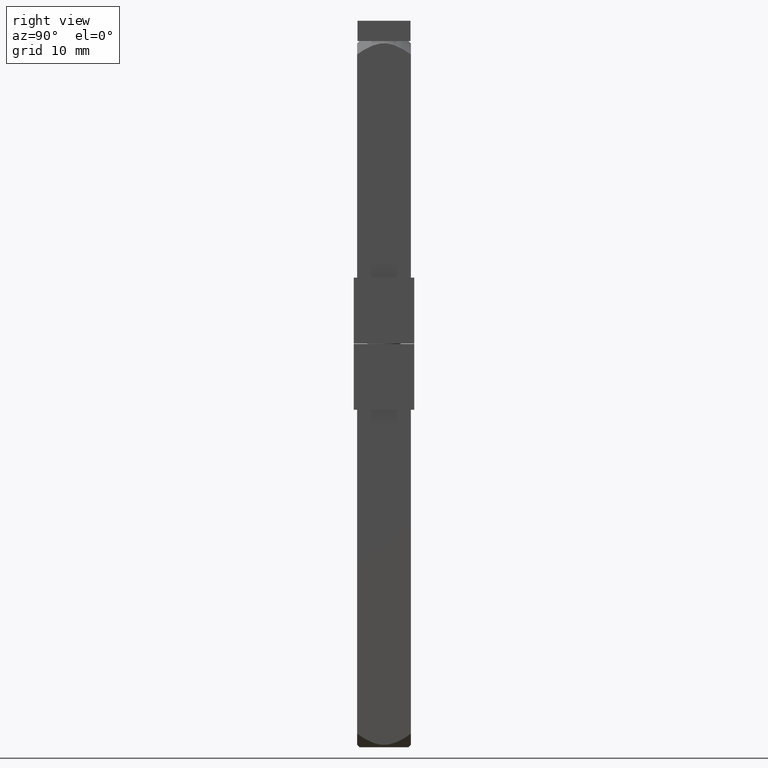
[diagram: clean part render]
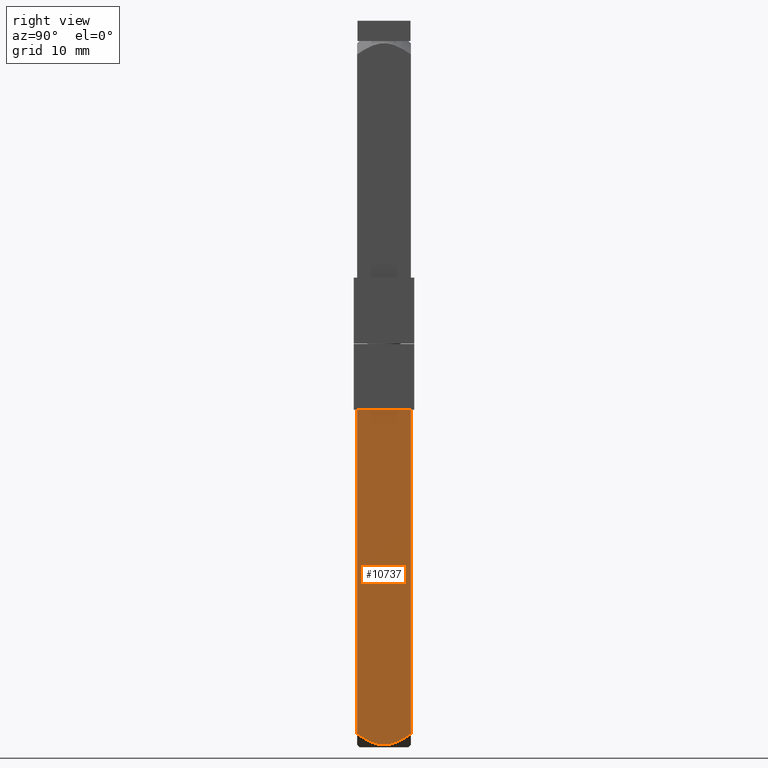
[diagram: same view with one face highlighted and labeled with its STEP entity id]
A machine part, right view. The second image highlights one B-rep face of the part: STEP entity #10737.
In plain terms, the highlighted planar face has unit normal (1, 0, 0).
Its self-contained STEP definition (entity closure, byte-faithful):
#529 = CARTESIAN_POINT ( 'NONE',  ( 4.000000000000001800, -3.999999999999999100, -9.800000000000002500 ) ) ;
#662 = CARTESIAN_POINT ( 'NONE',  ( 4.000000000000000000, 4.000000000000000000, -60.00000000000000000 ) ) ;
#669 = DIRECTION ( 'NONE',  ( -2.168404344971009100E-016, 1.000000000000000000, 0.0000000000000000000 ) ) ;
#700 = PLANE ( 'NONE',  #6323 ) ;
#716 = CARTESIAN_POINT ( 'NONE',  ( 4.000000000000000900, -0.3637571990186410600, -59.66023134941979600 ) ) ;
#869 = LINE ( 'NONE', #7383, #4228 ) ;
#1567 = CARTESIAN_POINT ( 'NONE',  ( 4.000000000000003600, -3.397323611316197800, -58.41785052794131200 ) ) ;
#1646 = CARTESIAN_POINT ( 'NONE',  ( 4.000000000000000000, -1.443714205921407000, -59.42144097236590000 ) ) ;
#1940 = DIRECTION ( 'NONE',  ( 0.0000000000000000000, 0.0000000000000000000, 1.000000000000000000 ) ) ;
#2441 = EDGE_CURVE ( 'NONE', #10324, #9357, #4185, .T. ) ;
#2477 = CARTESIAN_POINT ( 'NONE',  ( 4.000000000000001800, -3.701517467989904600, -58.21420477295768600 ) ) ;
#2555 = CARTESIAN_POINT ( 'NONE',  ( 4.000000000000000900, 3.702772751614142900, -58.21331715339467600 ) ) ;
#3350 = CARTESIAN_POINT ( 'NONE',  ( 4.000000000000000000, 0.9172548636517149400, -59.55974550962091700 ) ) ;
#3386 = CARTESIAN_POINT ( 'NONE',  ( 3.999999999999999100, 1.796119398810152700, -59.28507935105224600 ) ) ;
#3752 = CARTESIAN_POINT ( 'NONE',  ( 4.000000000000001800, -3.999999999999999100, -60.00000000000000000 ) ) ;
#4130 = CARTESIAN_POINT ( 'NONE',  ( 4.000000000000000000, 2.460946622343696900, -58.97276797375764800 ) ) ;
#4185 = LINE ( 'NONE', #3752, #4862 ) ;
#4228 = VECTOR ( 'NONE', #669, 1000.000000000000000 ) ;
#4242 = ORIENTED_EDGE ( 'NONE', *, *, #10188, .F. ) ;
#4342 = VERTEX_POINT ( 'NONE', #9661 ) ;
#4828 = ORIENTED_EDGE ( 'NONE', *, *, #10849, .T. ) ;
#4862 = VECTOR ( 'NONE', #10637, 1000.000000000000000 ) ;
#5042 = CARTESIAN_POINT ( 'NONE',  ( 4.000000000000000900, 4.000000000000000000, -58.00314575050762000 ) ) ;
#5118 = CARTESIAN_POINT ( 'NONE',  ( 4.000000000000001800, -2.770159802556432500, -58.80077077108951000 ) ) ;
#5590 = VERTEX_POINT ( 'NONE', #10030 ) ;
#5949 = FACE_OUTER_BOUND ( 'NONE', #10119, .T. ) ;
#6323 = AXIS2_PLACEMENT_3D ( 'NONE', #662, #7521, #8412 ) ;
#6720 = CARTESIAN_POINT ( 'NONE',  ( 4.000000000000002700, -0.7290103960240869000, -59.60876215461615900 ) ) ;
#6750 = CARTESIAN_POINT ( 'NONE',  ( 4.000000000000001800, -1.784885636263739500, -59.28964128341372200 ) ) ;
#7046 = CARTESIAN_POINT ( 'NONE',  ( 4.000000000000000000, 4.000000000000000000, -60.00000000000000000 ) ) ;
#7212 = B_SPLINE_CURVE_WITH_KNOTS ( 'NONE', 3,
 ( #5042, #2555, #7604, #9363, #4130, #3386, #8500, #3350, #7643, #10236, #11034, #716, #6720, #1646, #6750, #9331, #5118, #1567, #2477, #8429 ),
 .UNSPECIFIED., .F., .F.,
 ( 4, 2, 2, 2, 2, 2, 2, 2, 2, 4 ),
 ( 0.01744182451309195200, 0.01853605529222105200, 0.01963028607135015200, 0.02072451685047924800, 0.02127163224004379600, 0.02181874762960834100, 0.02291297840873743300, 0.02400720918786652600, 0.02510143996699561900, 0.02619567074612471100 ),
 .UNSPECIFIED. ) ;
#7383 = CARTESIAN_POINT ( 'NONE',  ( 4.000000000000000900, 1.734723475976807100E-015, -9.800000000000002500 ) ) ;
#7521 = DIRECTION ( 'NONE',  ( 1.000000000000000000, 2.168404344971009100E-016, -0.0000000000000000000 ) ) ;
#7604 = CARTESIAN_POINT ( 'NONE',  ( 4.000000000000000000, 3.400465325022324700, -58.41568981188495300 ) ) ;
#7643 = CARTESIAN_POINT ( 'NONE',  ( 4.000000000000000900, 0.7372169043267251500, -59.59668223526397000 ) ) ;
#8126 = VECTOR ( 'NONE', #1940, 1000.000000000000000 ) ;
#8174 = ORIENTED_EDGE ( 'NONE', *, *, #8908, .F. ) ;
#8412 = DIRECTION ( 'NONE',  ( -2.168404344971009100E-016, 1.000000000000000000, 0.0000000000000000000 ) ) ;
#8429 = CARTESIAN_POINT ( 'NONE',  ( 4.000000000000002700, -3.999999999999999100, -58.00314575050762000 ) ) ;
#8500 = CARTESIAN_POINT ( 'NONE',  ( 4.000000000000000900, 1.449376973391927300, -59.41929071794311300 ) ) ;
#8908 = EDGE_CURVE ( 'NONE', #5590, #10324, #7212, .T. ) ;
#9331 = CARTESIAN_POINT ( 'NONE',  ( 4.000000000000001800, -2.447582843346915600, -58.97973501261440500 ) ) ;
#9357 = VERTEX_POINT ( 'NONE', #529 ) ;
#9363 = CARTESIAN_POINT ( 'NONE',  ( 4.000000000000000000, 2.779486359180811700, -58.79531405501234100 ) ) ;
#9614 = CARTESIAN_POINT ( 'NONE',  ( 4.000000000000002700, -3.999999999999999100, -58.00314575050762000 ) ) ;
#9661 = CARTESIAN_POINT ( 'NONE',  ( 4.000000000000000000, 4.000000000000000000, -9.800000000000002500 ) ) ;
#9736 = LINE ( 'NONE', #7046, #8126 ) ;
#10030 = CARTESIAN_POINT ( 'NONE',  ( 4.000000000000000900, 4.000000000000000000, -58.00314575050762000 ) ) ;
#10057 = ORIENTED_EDGE ( 'NONE', *, *, #2441, .F. ) ;
#10119 = EDGE_LOOP ( 'NONE', ( #8174, #4828, #4242, #10057 ) ) ;
#10188 = EDGE_CURVE ( 'NONE', #9357, #4342, #869, .T. ) ;
#10236 = CARTESIAN_POINT ( 'NONE',  ( 4.000000000000001800, 0.3707782775391546000, -59.64695389706406600 ) ) ;
#10324 = VERTEX_POINT ( 'NONE', #9614 ) ;
#10637 = DIRECTION ( 'NONE',  ( 0.0000000000000000000, 0.0000000000000000000, 1.000000000000000000 ) ) ;
#10737 = ADVANCED_FACE ( 'NONE', ( #5949 ), #700, .T. ) ;
#10849 = EDGE_CURVE ( 'NONE', #5590, #4342, #9736, .T. ) ;
#11034 = CARTESIAN_POINT ( 'NONE',  ( 4.000000000000001800, 0.1856813462520654500, -59.65988312021668300 ) ) ;